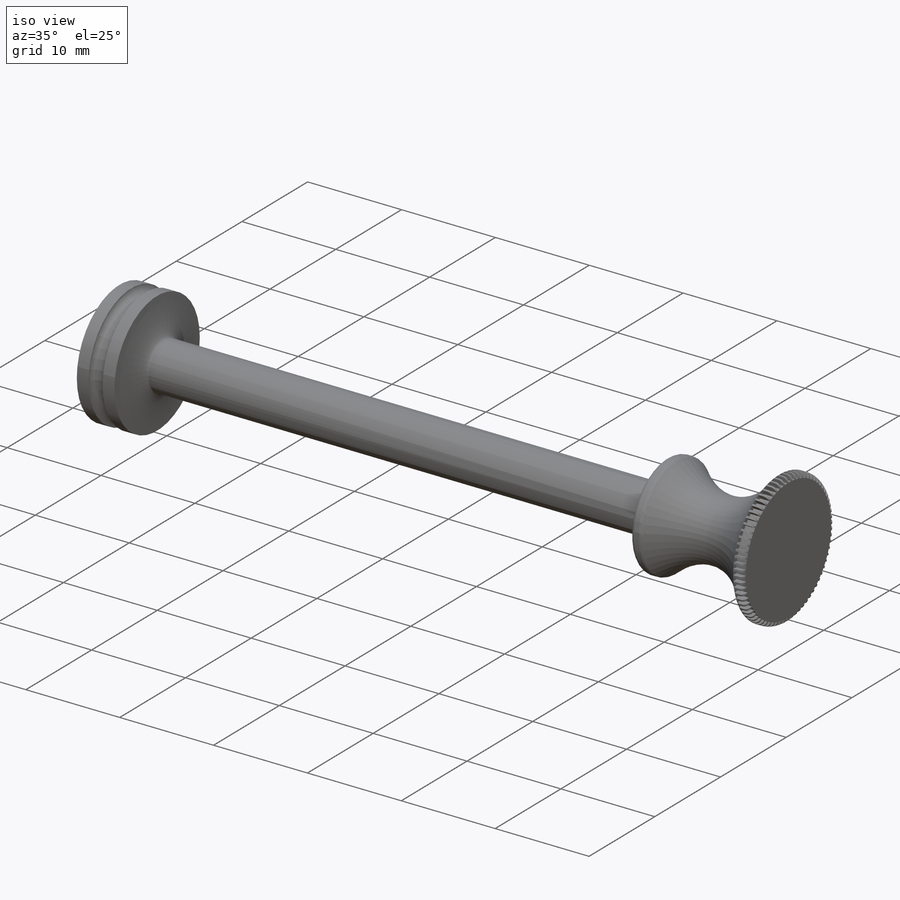
[diagram: iso view]
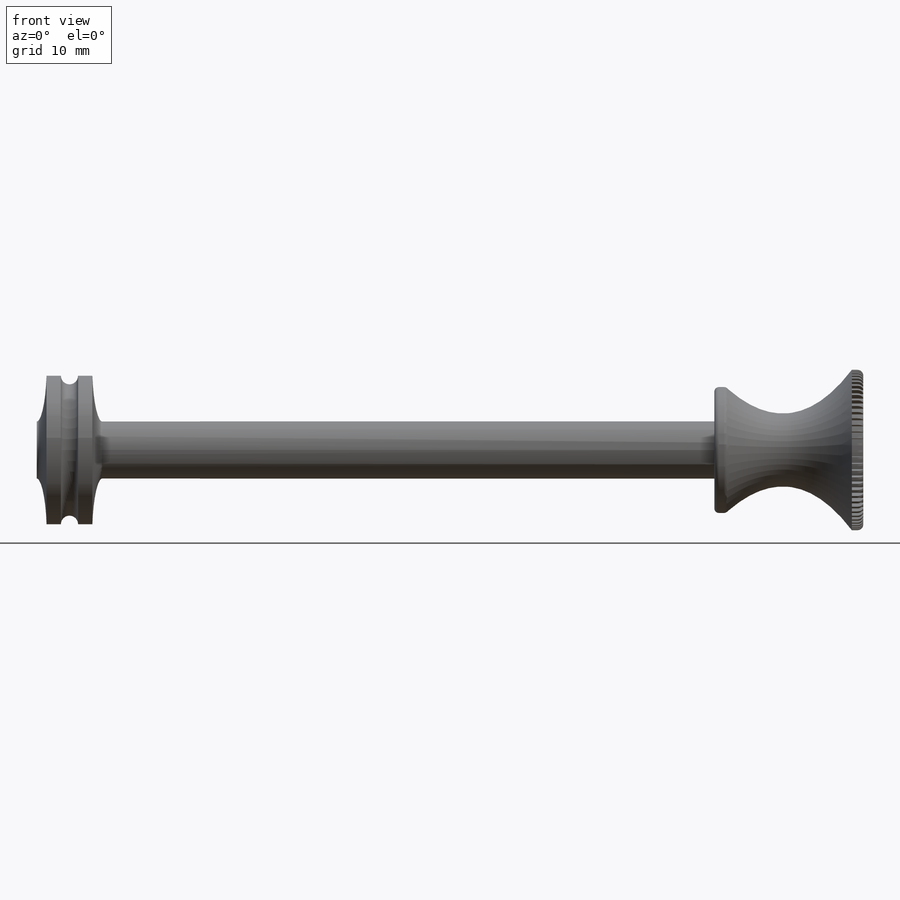
[diagram: front view]
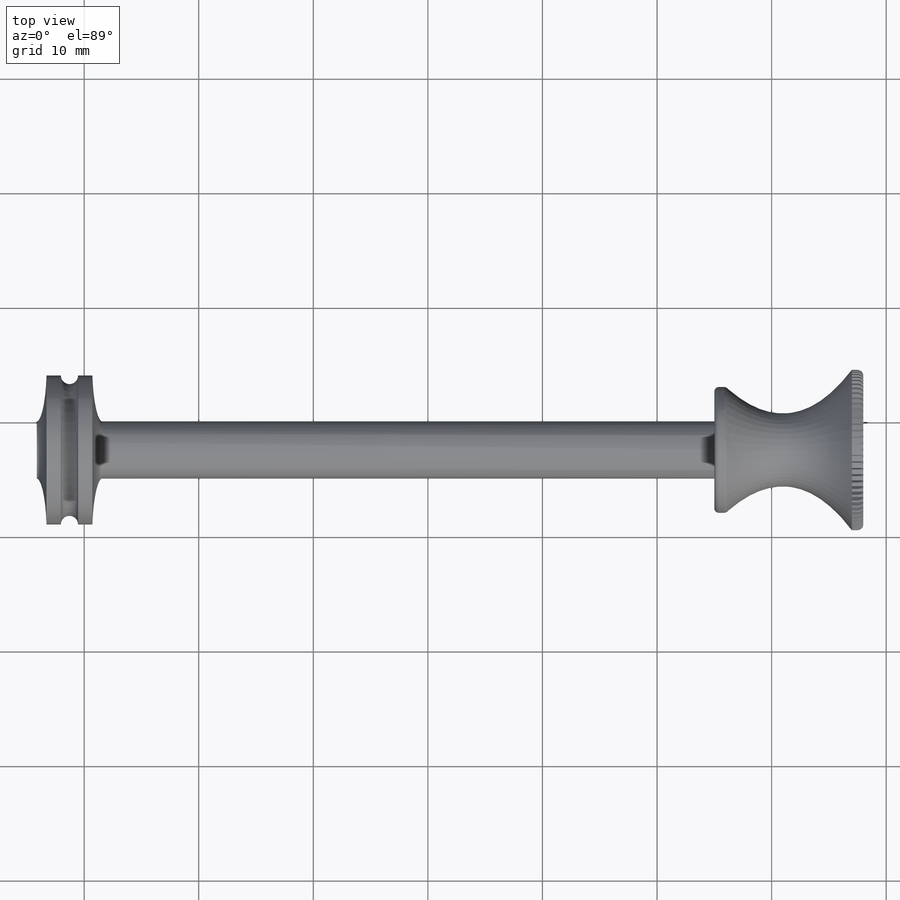
[diagram: top view]
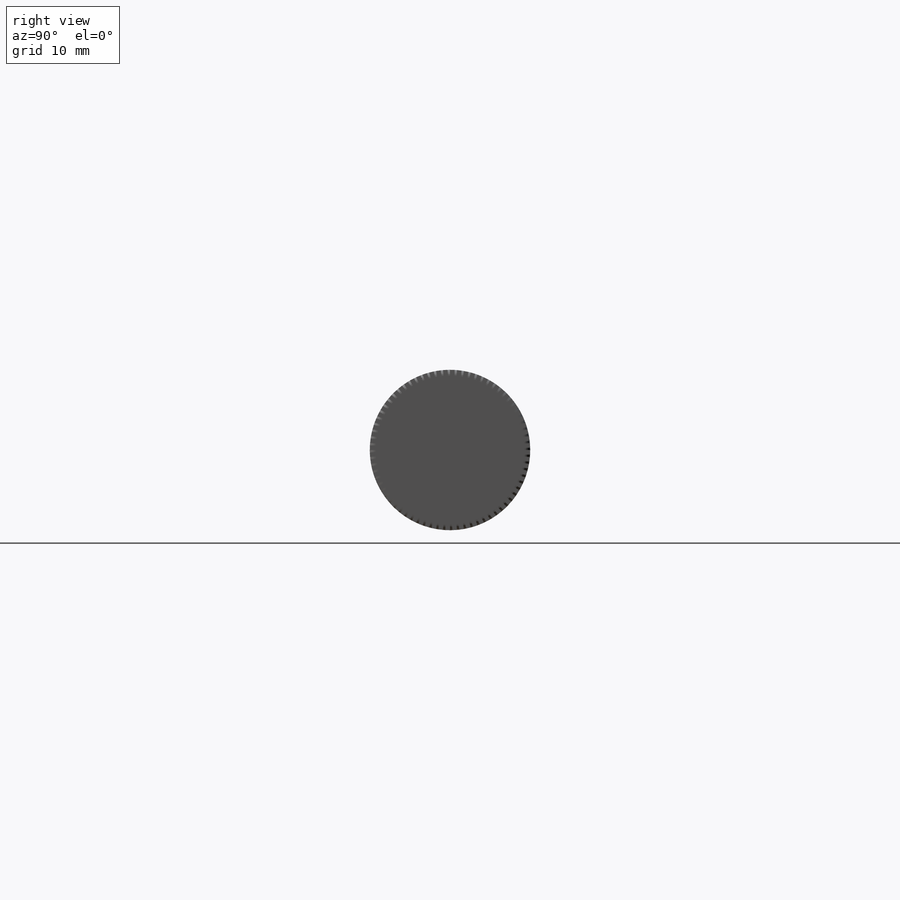
[diagram: right view]
SOLIDWORKS PART (.sldprt)
format: sldprt  version: not decoded by parser v0  size: 602,112 bytes
history: native  units: mm
features: plane x4, sketch x2, fillet x2, material x1, revolve x1, cut_extrude x1, pattern_circular x1 (+9 scaffold rows collapsed)
feature tree (21):
  scaffold x9  (default folders/planes/origin — collapsed)
  material  "Mosaz"
  plane  "Přední rovina"
  plane  "Horní rovina"
  plane  "Pravá rovina"
  sketch  "Skica1"  dims[c1.D15=1.5mm c1.D12=0.75mm c1.D9=1.5mm c1.D1=80.0mm c1.D2=45.0mm c1.D3=2.5mm c1.D4=3.0mm c1.D5=1.0mm c1.D6=10.0mm c1.D7=5.0mm c1.D8=1.0mm c2.D6=7.0mm c2.D7=1.0mm c2.D9=13.5mm c2.D10=11.0mm c3.D7=4.0mm c3.D9=0.9mm c3.D11=8.0mm c3.D12=1.0mm c3.D13=8.0mm c4.D9=4.0mm c4.D11=13.0mm c4.D13=~59.138536mm c4.D14=4.0mm c5.D11=6.5mm c6.D11=~165.975938deg c6.D13=~165.975938deg]
  revolve  "Rotovat1"  Angle=360deg
  fillet  "Zaoblit2"  Radius=0.5mm
  fillet  "Zaoblit3"  Radius=0.4mm
  plane  "Rovina1"  Offset=9.5mm
  sketch  "Skica2"  dims[D1=2.0mm D2=0.4mm]
  cut_extrude  "Odebrat vysunutím1"  Depth=0.5mm
  pattern_circular  "Kruhové pole1"  Count=72 Angle=5deg
decode coverage: 7 of 7 modeling features carry decoded parameters
note: ~ marks probable driven/reference dimensions
note: suppression state not decoded; provenance and decode notes live in map.json
